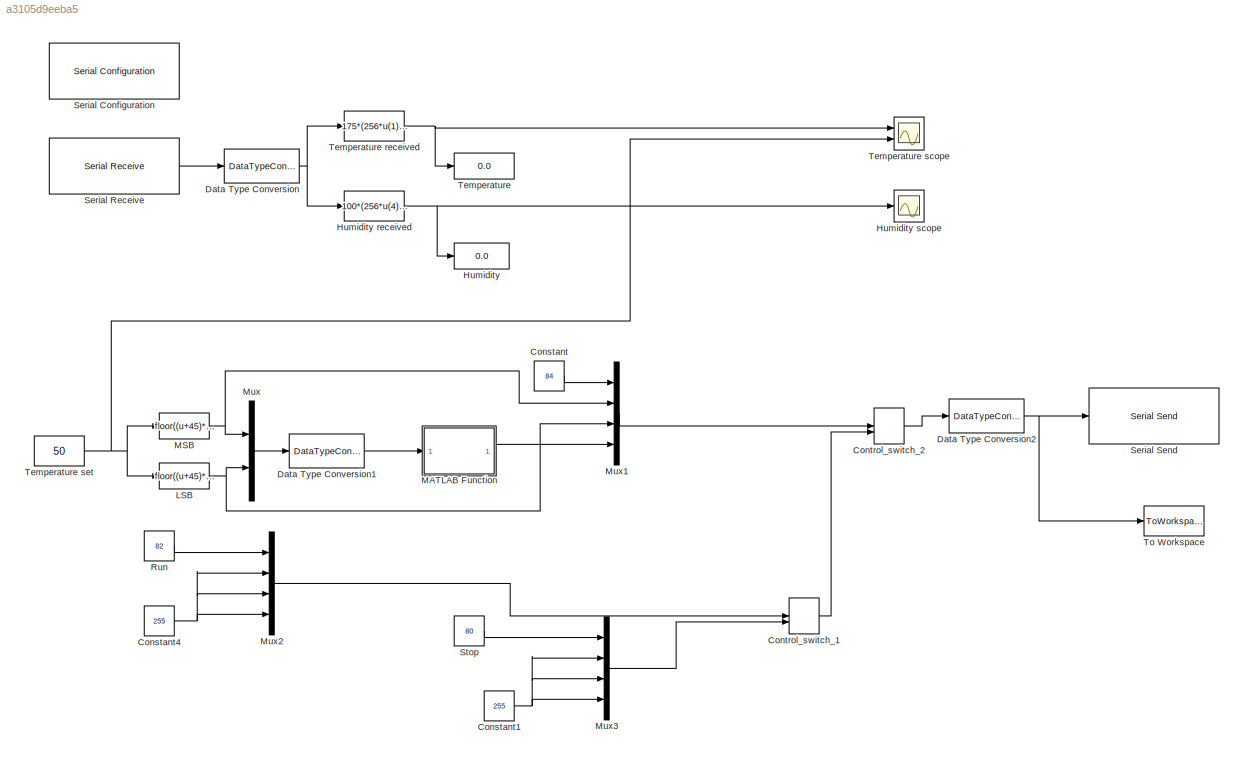
MODEL slx_a3105d9eeba5
KIND model
CONFIG AbsTol = auto
CONFIG EnableMultiTasking = off
CONFIG FixedStep = auto
CONFIG MaxStep = auto
CONFIG MinStep = auto
CONFIG RelTol = 1e-3
CONFIG SampleTimeConstraint = Unconstrained
CONFIG Solver = FixedStepAuto
CONFIG SolverName = FixedStepAuto
CONFIG StartTime = 0.0
CONFIG StopTime = 300
BLOCK [Constant] Constant
  Value = 84
BLOCK [Constant] Constant1
  Value = 255
BLOCK [Constant] Constant4
  Value = 255
BLOCK [ManualSwitch] Control_switch_1 
BLOCK [ManualSwitch] Control_switch_2 
  CurrentSetting = 0
BLOCK [DataTypeConversion] Data Type Conversion
  RndMeth = Nearest
  SaturateOnIntegerOverflow = off
BLOCK [DataTypeConversion] Data Type Conversion1
  RndMeth = Floor
  SaturateOnIntegerOverflow = off
BLOCK [DataTypeConversion] Data Type Conversion2
  OutDataTypeStr = uint8
  RndMeth = Nearest
  SaturateOnIntegerOverflow = off
BLOCK [Display] Humidity
  Decimation = 1
  Ports = [1]
BLOCK [Fcn] Humidity received 
  Expr = 100*(256*u(4)+u(5))/65535
BLOCK [Scope] Humidity scope 
  Floating = off
  NumInputPorts = 1
  Ports = [1]
  ScopeSpecificationString = Simulink.scopes.TimeScopeBlockCfg('CurrentConfiguration', extmgr.ConfigurationSet(extmgr.Configuration('Core','General UI',true,'FigureColor',[1 1 1]),extmgr.Configuration('Core','Source UI',true),extmgr.Configuration('Sources','WiredSimulink',true,'DataLoggingVariableName','ScopeData1'),extmgr.Configuration('Visuals','Time Domain',true,'SerializedDisplays',{struct('MinYLimReal','27.52327','MaxYLi...<+1559ch>
BLOCK [Fcn] LSB
  Expr = floor((u+45)*65535/175-floor((u+45)*65535/175/256)*256+0.5)
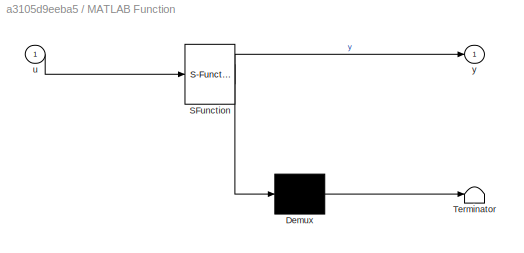
BLOCK [SubSystem] MATLAB Function
  ErrorFcn = Stateflow.Translate.translate
  PermitHierarchicalResolution = ExplicitOnly
  Ports = [1, 1]
  RequestExecContextInheritance = off
  SFBlockType = MATLAB Function
  TreatAsAtomicUnit = on
BLOCK [Demux] MATLAB Function/ Demux 
  Outputs = 1
  Ports = [1, 1]
BLOCK [S-Function] MATLAB Function/ SFunction 
  EnableBusSupport = on
  FunctionName = sf_sfun
  PortCounts = [1 2]
  Ports = [1, 2]
  SFcnIsStateOwnerBlock = off
  SFunctionDeploymentMode = off
  Tag = Stateflow S-Function egg_incubator 1
BLOCK [Terminator] MATLAB Function/ Terminator 
BLOCK [Inport] MATLAB Function/u
  IconDisplay = Port number
BLOCK [Outport] MATLAB Function/y
  IconDisplay = Port number
BLOCK [Fcn] MSB
  Expr = floor((u+45)*65535/(175*256))
BLOCK [Mux] Mux
  DisplayOption = bar
  Inputs = 2
  Ports = [2, 1]
BLOCK [Mux] Mux1
  DisplayOption = bar
  Ports = [4, 1]
BLOCK [Mux] Mux2
  DisplayOption = bar
  Ports = [4, 1]
BLOCK [Mux] Mux3
  DisplayOption = bar
  Ports = [4, 1]
BLOCK [Constant] Run
  Value = 82
BLOCK [Reference] Serial Configuration  REF=instrumentlib/Serial Configuration
  Ports = []
  Priority = -200000
  SourceBlock = instrumentlib/Serial Configuration
  SourceProductBaseCode = IC
  SourceProductName = Instrument Control Toolbox
  SourceType = Serial Configuration
BLOCK [Reference] Serial Receive  REF=instrumentlib/Serial Receive
  Ports = [0, 1]
  SourceBlock = instrumentlib/Serial Receive
  SourceProductBaseCode = IC
  SourceProductName = Instrument Control Toolbox
  SourceType = Serial Receive
BLOCK [Reference] Serial Send  REF=instrumentlib/Serial Send
  Ports = [1]
  SourceBlock = instrumentlib/Serial Send
  SourceProductBaseCode = IC
  SourceProductName = Instrument Control Toolbox
  SourceType = Serial Send
BLOCK [Constant] Stop
  Value = 80
BLOCK [Display] Temperature 
  Decimation = 1
  Ports = [1]
BLOCK [Fcn] Temperature received 
  Expr = 175*(256*u(1)+u(2))/65535-45
BLOCK [Scope] Temperature scope 
  Floating = off
  NumInputPorts = 2
  Ports = [2]
  ScopeSpecificationString = Simulink.scopes.TimeScopeBlockCfg('CurrentConfiguration', extmgr.ConfigurationSet(extmgr.Configuration('Core','General UI',true,'FigureColor',[1 1 1]),extmgr.Configuration('Core','Source UI',true),extmgr.Configuration('Sources','WiredSimulink',true,'DataLoggingVariableName','ScopeData1'),extmgr.Configuration('Visuals','Time Domain',true,'SerializedDisplays',{struct('MinYLimReal','20','MaxYLimReal'...<+1635ch>
BLOCK [Constant] Temperature set 
  Value = 50
BLOCK [ToWorkspace] To Workspace
  FixptAsFi = on
  MaxDataPoints = inf
  Ports = [1]
  SampleTime = -1
  SaveFormat = Timeseries
  VariableName = Test
NET Constant1:1 -> Mux3:2, Mux3:3, Mux3:4
NET Constant4:1 -> Mux2:2, Mux2:3, Mux2:4
LINE Constant:1 -> Mux1:1
LINE Control_switch_1 :1 -> Control_switch_2 :2
LINE Control_switch_2 :1 -> Data Type Conversion2:1
LINE Data Type Conversion1:1 -> MATLAB Function:1
NET Data Type Conversion2:1 -> Serial Send:1, To Workspace:1
NET Data Type Conversion:1 -> Humidity received :1, Temperature received :1
NET Humidity received :1 -> Humidity scope :1, Humidity:1
NET LSB:1 -> Mux1:3, Mux:2
LINE MATLAB Function:1 -> Mux1:4
NET MSB:1 -> Mux1:2, Mux:1
LINE Mux1:1 -> Control_switch_2 :1
LINE Mux2:1 -> Control_switch_1 :1
LINE Mux3:1 -> Control_switch_1 :2
LINE Mux:1 -> Data Type Conversion1:1
LINE Run:1 -> Mux2:1
LINE Serial Receive:1 -> Data Type Conversion:1
LINE Stop:1 -> Mux3:1
NET Temperature received :1 -> Temperature :1, Temperature scope :1
NET Temperature set :1 -> LSB:1, MSB:1, Temperature scope :2
note: NET lines group one-source signal fan-out (src -> all destinations, sorted); 1:1 wires keep LINE
CHART MATLAB Function states=1 transitions=1
  STATE_LABEL 'eML_blk_kernel()'
  STATE_LABEL "SCRIPT:\nfunction y = crc8(u)\nA = uint8([0 1; 0 1]);\nB = uint8([0 0; 1 1]);\nTTable = bitxor(A, B);\ndata = uint8([u(1) u(2)]);\npolynomial = uint8(49);\npolynomial_bin = bitget(polynomial,8:-1:1,'uint8');\ncrc_initial = uint8(255);\ncrc_bin = bitget(crc_initial,8:-1:1,'uint8');\n for i=1:2\n    data_bin = bitget(data(i),8:-1:1,'uint8');\n    crc_bin = bitxor(data_bin, crc_bin, 'uint8');\n    for j=1:8\n     ...<+436ch>"
